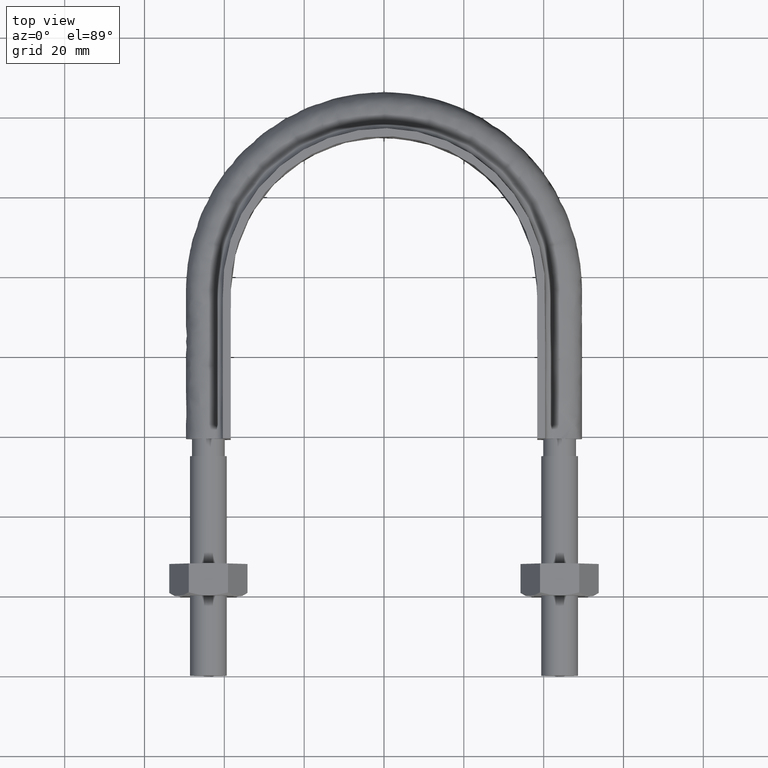
[diagram: clean part render]
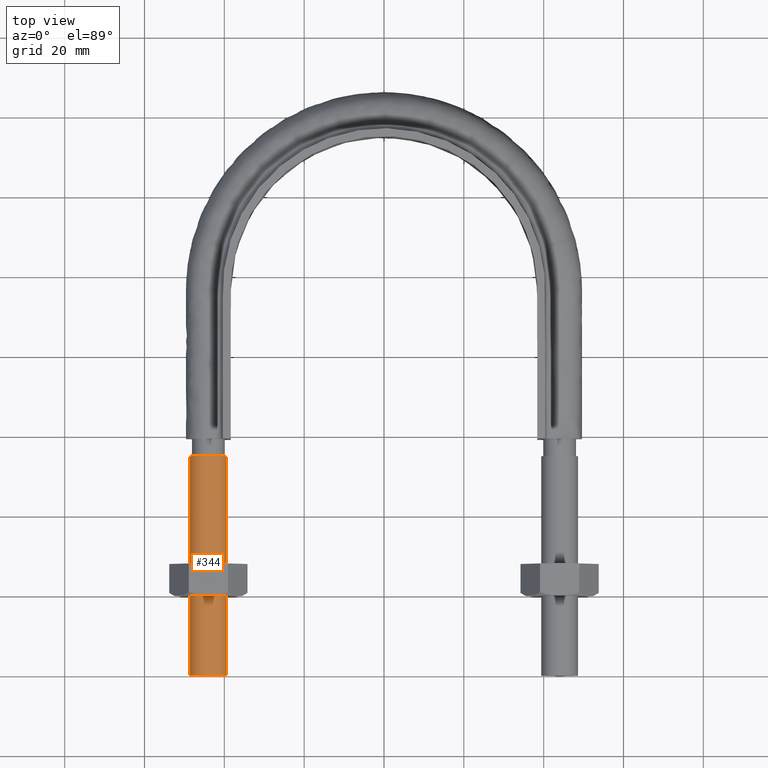
[diagram: same view with one face highlighted and labeled with its STEP entity id]
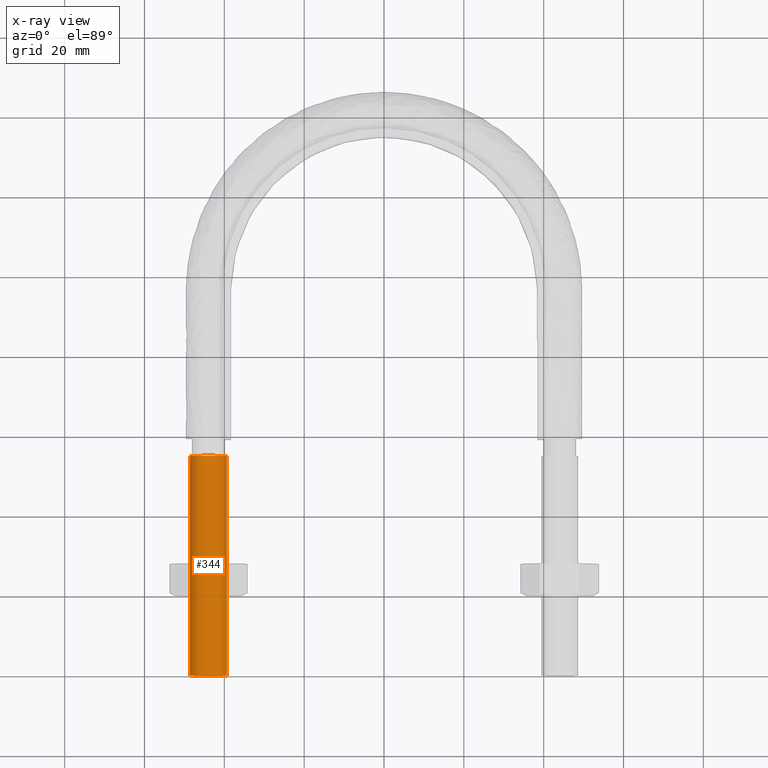
[diagram: x-ray of the same camera — body ghosted, the highlighted face saturated]
A machine part, top view. The second image highlights one B-rep face of the part: STEP entity #344.
The next image is the same camera in x-ray: the body ghosted, the highlighted face saturated — about 0% of this face is hidden behind the body in this view.
In plain terms, the highlighted cylindrical surface (bore or boss wall) has radius 4.6 mm, axis along (-0, -1, -0).
Its self-contained STEP definition (entity closure, byte-faithful):
#344 = ADVANCED_FACE( '', ( #459, #460 ), #461, .T. );
#459 = FACE_OUTER_BOUND( '', #1458, .T. );
#460 = FACE_OUTER_BOUND( '', #1459, .T. );
#461 = CYLINDRICAL_SURFACE( '', #1460, 4.60000000000000 );
#1458 = EDGE_LOOP( '', ( #1752 ) );
#1459 = EDGE_LOOP( '', ( #1753 ) );
#1460 = AXIS2_PLACEMENT_3D( '', #1754, #1755, #1756 );
#1752 = ORIENTED_EDGE( '', *, *, #2157, .F. );
#1753 = ORIENTED_EDGE( '', *, *, #2158, .T. );
#1754 = CARTESIAN_POINT( '', ( -44.0000000000000, 55.0000000000000, 3.42889779070266E-015 ) );
#1755 = DIRECTION( '', ( -2.44921270764475E-016, -1.00000000000000, -6.12303176911189E-017 ) );
#1756 = DIRECTION( '', ( 1.00000000000000, -2.44921270764475E-016, -7.49830360911069E-033 ) );
#2157 = EDGE_CURVE( '', #2337, #2337, #2338, .T. );
#2158 = EDGE_CURVE( '', #2339, #2339, #2340, .T. );
#2337 = VERTEX_POINT( '', #2846 );
#2338 = CIRCLE( '', #2847, 4.60000000000000 );
#2339 = VERTEX_POINT( '', #2848 );
#2340 = CIRCLE( '', #2849, 4.60000000000000 );
#2846 = CARTESIAN_POINT( '', ( -39.4000000000000, 9.64989806812033E-015, 6.12303176911191E-017 ) );
#2847 = AXIS2_PLACEMENT_3D( '', #3238, #3239, #3240 );
#2848 = CARTESIAN_POINT( '', ( -39.4000000000000, 55.0000000000000, 3.42889779070266E-015 ) );
#2849 = AXIS2_PLACEMENT_3D( '', #3241, #3242, #3243 );
#3238 = CARTESIAN_POINT( '', ( -44.0000000000000, 1.07765359136369E-014, 6.12303176911192E-017 ) );
#3239 = DIRECTION( '', ( -2.44921270764476E-016, -1.00000000000000, -6.12303176911189E-017 ) );
#3240 = DIRECTION( '', ( 1.00000000000000, -2.44921270764476E-016, -1.01150562509412E-032 ) );
#3241 = CARTESIAN_POINT( '', ( -44.0000000000000, 55.0000000000000, 3.42889779070266E-015 ) );
#3242 = DIRECTION( '', ( -2.44921270764476E-016, -1.00000000000000, -6.12303176911189E-017 ) );
#3243 = DIRECTION( '', ( 1.00000000000000, -2.44921270764476E-016, -1.01150562509412E-032 ) );